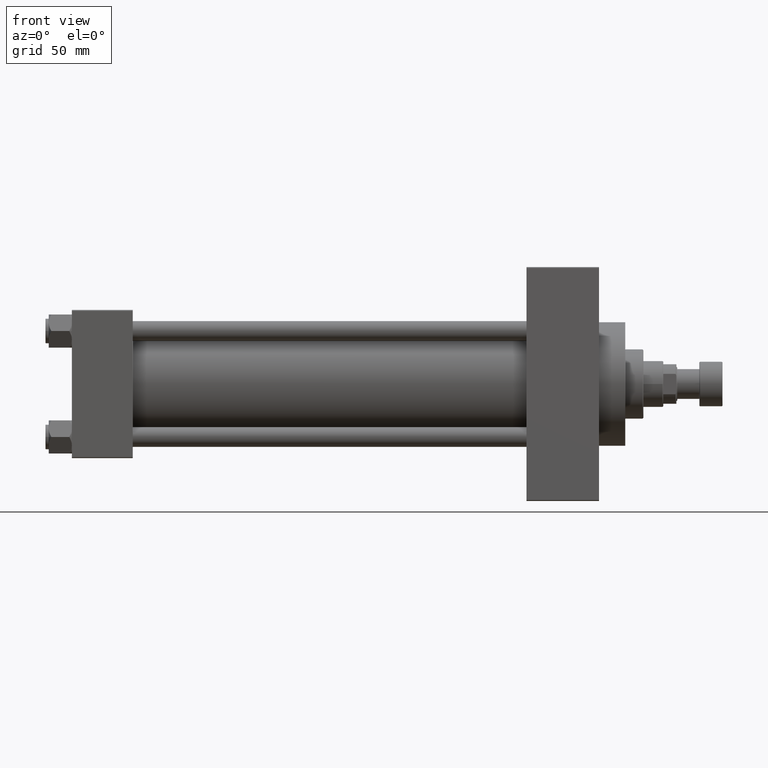
[diagram: clean part render]
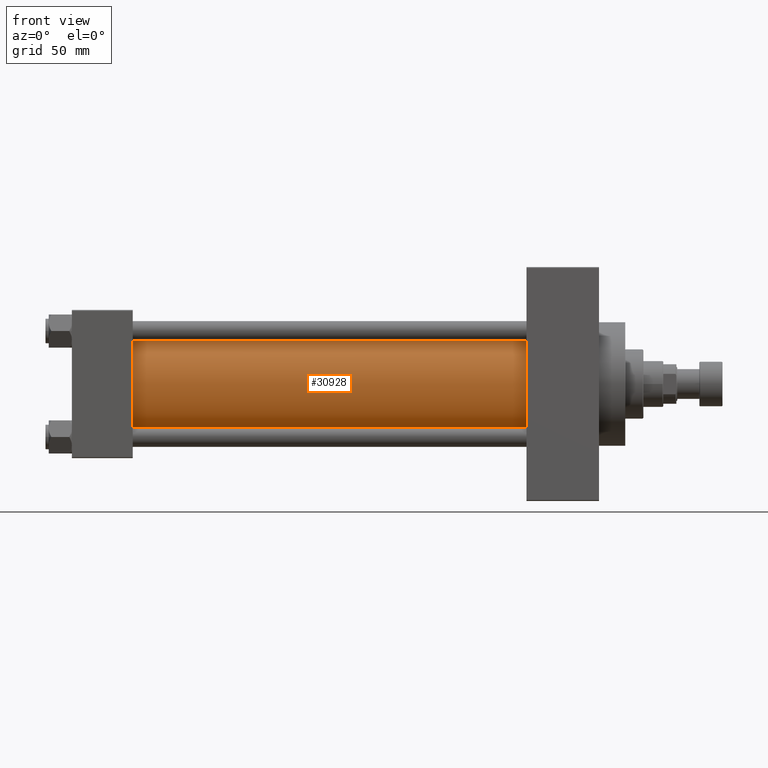
[diagram: same view with one face highlighted and labeled with its STEP entity id]
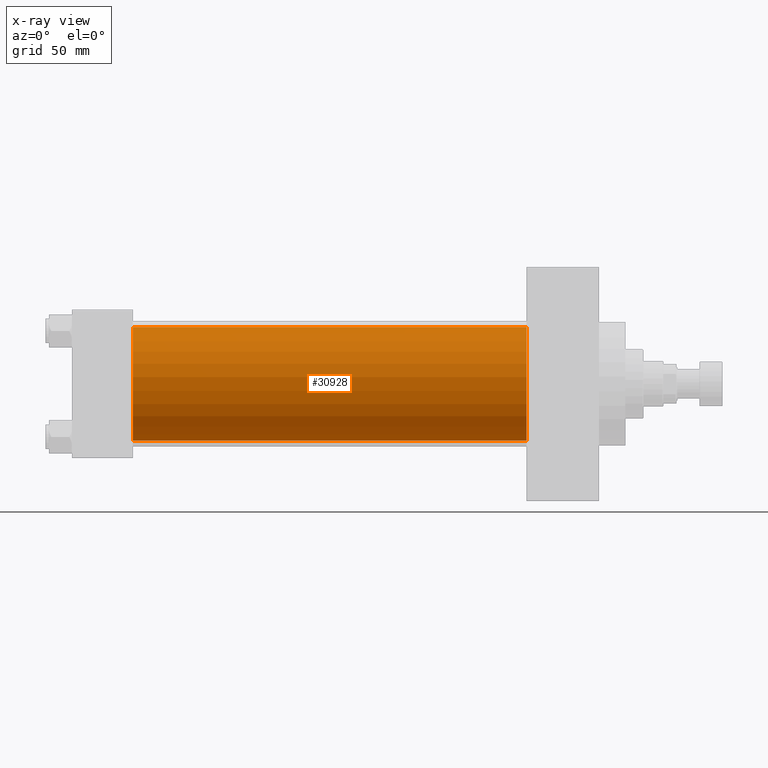
[diagram: x-ray of the same camera — body ghosted, the highlighted face saturated]
A machine part, front view. The second image highlights one B-rep face of the part: STEP entity #30928.
The next image is the same camera in x-ray: the body ghosted, the highlighted face saturated — about 0% of this face is hidden behind the body in this view.
In plain terms, the highlighted cylindrical surface (partial cylindrical patch) has radius 34.5 mm, axis along (-1, -0, -0).
Its self-contained STEP definition (entity closure, byte-faithful):
#397 = CARTESIAN_POINT ( 'NONE',  ( 275.9999999999999432, -2.602085213965210642E-15, 0.000000000000000000 ) ) ;
#705 = CYLINDRICAL_SURFACE ( 'NONE', #39545, 34.50000000000000000 ) ;
#938 = DIRECTION ( 'NONE',  ( -1.000000000000000000, -0.000000000000000000, -0.000000000000000000 ) ) ;
#2748 = DIRECTION ( 'NONE',  ( 0.000000000000000000, 0.000000000000000000, 1.000000000000000000 ) ) ;
#3472 = CARTESIAN_POINT ( 'NONE',  ( 275.9999999999999432, 1.622946243093157097E-15, -34.50000000000000000 ) ) ;
#4048 = VECTOR ( 'NONE', #15731, 1000.000000000000000 ) ;
#4335 = EDGE_CURVE ( 'NONE', #15875, #40731, #15148, .T. ) ;
#7893 = VERTEX_POINT ( 'NONE', #38608 ) ;
#11123 = ORIENTED_EDGE ( 'NONE', *, *, #29319, .T. ) ;
#11754 = CARTESIAN_POINT ( 'NONE',  ( 275.9999999999999432, 1.622946243093157097E-15, -34.50000000000000000 ) ) ;
#12021 = ORIENTED_EDGE ( 'NONE', *, *, #4335, .F. ) ;
#12194 = CIRCLE ( 'NONE', #41449, 34.50000000000000000 ) ;
#15088 = DIRECTION ( 'NONE',  ( 1.000000000000000000, 0.000000000000000000, 0.000000000000000000 ) ) ;
#15148 = LINE ( 'NONE', #11754, #21578 ) ;
#15731 = DIRECTION ( 'NONE',  ( -1.000000000000000000, -0.000000000000000000, -0.000000000000000000 ) ) ;
#15875 = VERTEX_POINT ( 'NONE', #3472 ) ;
#16712 = ORIENTED_EDGE ( 'NONE', *, *, #45942, .T. ) ;
#21578 = VECTOR ( 'NONE', #30095, 1000.000000000000000 ) ;
#22728 = CARTESIAN_POINT ( 'NONE',  ( 275.9999999999999432, -2.602085213965210642E-15, 34.50000000000000000 ) ) ;
#23988 = CARTESIAN_POINT ( 'NONE',  ( 37.00000000000000711, 1.622946243093157097E-15, -34.50000000000000000 ) ) ;
#25942 = ORIENTED_EDGE ( 'NONE', *, *, #45819, .F. ) ;
#26161 = DIRECTION ( 'NONE',  ( 0.000000000000000000, 0.000000000000000000, -1.000000000000000000 ) ) ;
#26476 = CARTESIAN_POINT ( 'NONE',  ( 275.9999999999999432, -2.602085213965210642E-15, 0.000000000000000000 ) ) ;
#26718 = DIRECTION ( 'NONE',  ( 0.000000000000000000, 0.000000000000000000, 1.000000000000000000 ) ) ;
#29319 = EDGE_CURVE ( 'NONE', #32069, #7893, #36754, .T. ) ;
#30095 = DIRECTION ( 'NONE',  ( -1.000000000000000000, -0.000000000000000000, -0.000000000000000000 ) ) ;
#30928 = ADVANCED_FACE ( 'NONE', ( #33738 ), #705, .T. ) ;
#32069 = VERTEX_POINT ( 'NONE', #46664 ) ;
#32218 = EDGE_LOOP ( 'NONE', ( #12021, #25942, #11123, #16712 ) ) ;
#32409 = DIRECTION ( 'NONE',  ( 1.000000000000000000, -0.000000000000000000, 0.000000000000000000 ) ) ;
#33720 = CIRCLE ( 'NONE', #44510, 34.50000000000000000 ) ;
#33738 = FACE_OUTER_BOUND ( 'NONE', #32218, .T. ) ;
#36754 = LINE ( 'NONE', #22728, #4048 ) ;
#38608 = CARTESIAN_POINT ( 'NONE',  ( 37.00000000000000711, -2.602085213965210642E-15, 34.50000000000000000 ) ) ;
#39404 = CARTESIAN_POINT ( 'NONE',  ( 37.00000000000000711, -2.602085213965210642E-15, 0.000000000000000000 ) ) ;
#39545 = AXIS2_PLACEMENT_3D ( 'NONE', #26476, #938, #26718 ) ;
#40731 = VERTEX_POINT ( 'NONE', #23988 ) ;
#41449 = AXIS2_PLACEMENT_3D ( 'NONE', #39404, #32409, #2748 ) ;
#44510 = AXIS2_PLACEMENT_3D ( 'NONE', #397, #15088, #26161 ) ;
#45819 = EDGE_CURVE ( 'NONE', #32069, #15875, #33720, .T. ) ;
#45942 = EDGE_CURVE ( 'NONE', #7893, #40731, #12194, .T. ) ;
#46664 = CARTESIAN_POINT ( 'NONE',  ( 275.9999999999999432, -2.602085213965210642E-15, 34.50000000000000000 ) ) ;